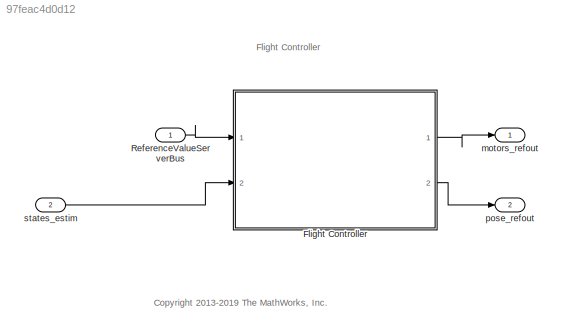
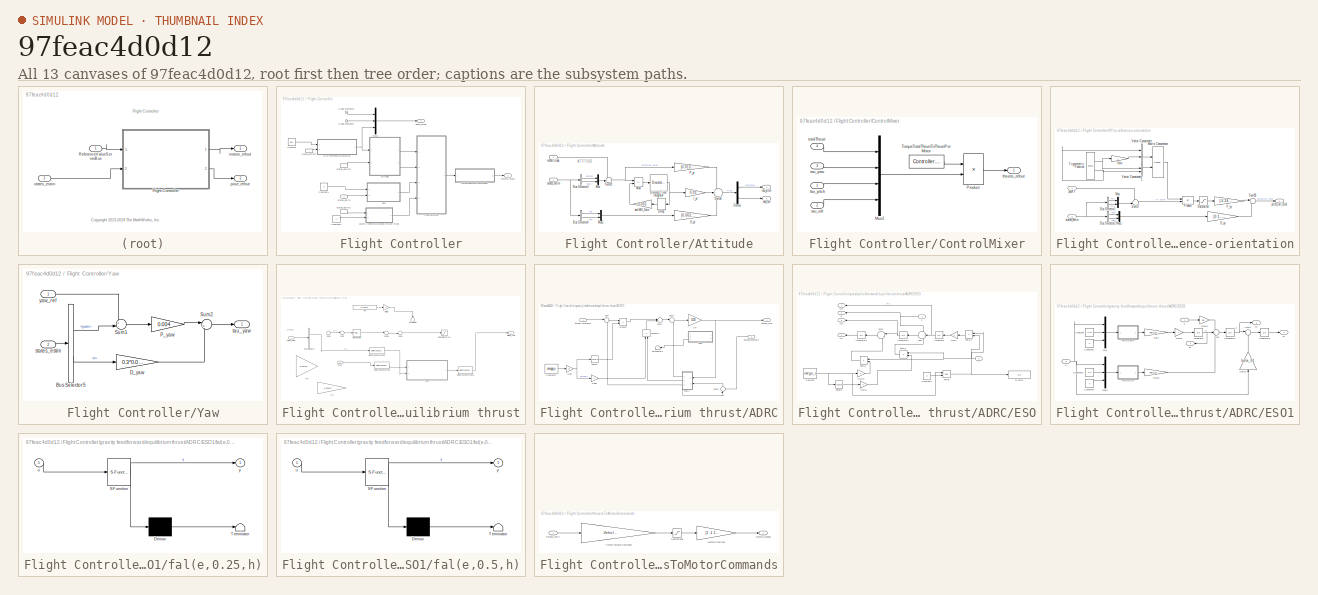
[diagram: thumbnail index - all 13 canvases of the model, root first then tree order]
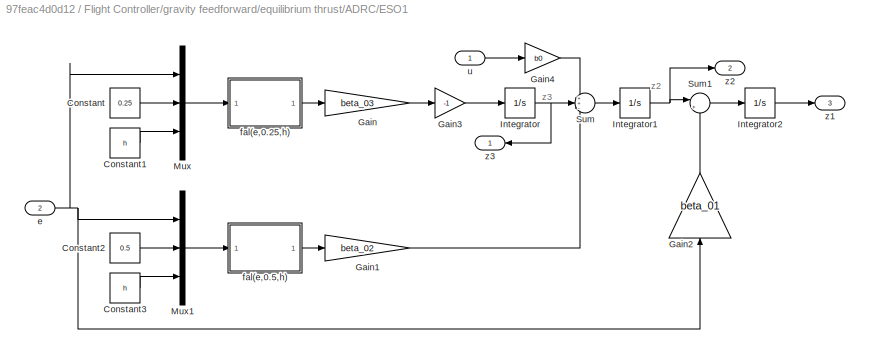
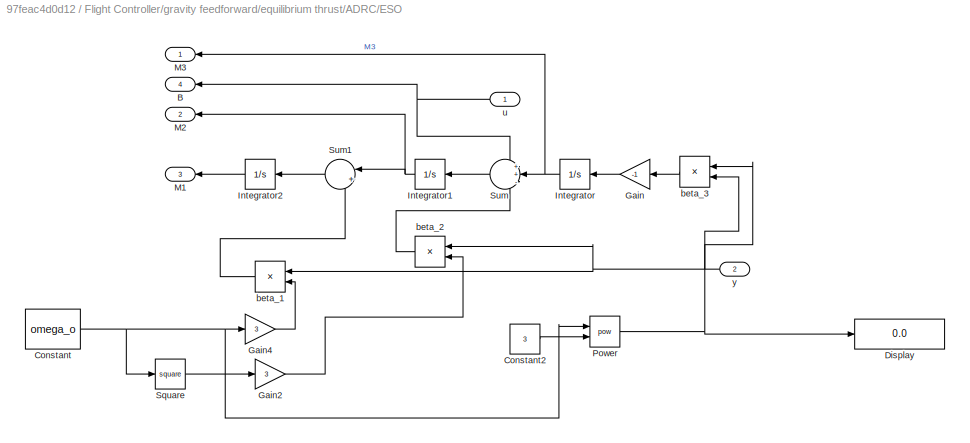
MODEL slx_97feac4d0d12
KIND model
CONFIG AbsTol = auto
CONFIG EnableMultiTasking = on
CONFIG FixedStep = Ts
CONFIG MaxStep = auto
CONFIG MinStep = auto
CONFIG RelTol = 1e-3
CONFIG SampleTimeConstraint = Unconstrained
CONFIG SolverName = FixedStepAuto
CONFIG StartTime = 0
CONFIG StopTime = TFinal
BLOCK [SubSystem] Flight Controller
  Ports = [2, 2]
  RequestExecContextInheritance = off
BLOCK [SubSystem] Flight Controller/Attitude
  Ports = [2, 2]
  RequestExecContextInheritance = off
BLOCK [Sum] Flight Controller/Attitude/Add
  IconShape = rectangular
  Inputs = +-
  Ports = [2, 1]
BLOCK [BusSelector] Flight Controller/Attitude/Bus Selector3
  OutputSignals = pitch,roll
  Ports = [1, 2]
BLOCK [BusSelector] Flight Controller/Attitude/Bus Selector4
  OutputSignals = q,p
  Ports = [1, 2]
BLOCK [Gain] Flight Controller/Attitude/D_pr
  Gain = [0.002;0.0028]
BLOCK [Delay] Flight Controller/Attitude/Delay
  DelayLength = 1
  InitialCondition = 0
  InputPortMap = u0
  Ports = [1, 1]
BLOCK [Demux] Flight Controller/Attitude/Demux
  Outputs = 2
  Ports = [1, 2]
BLOCK [DiscreteIntegrator] Flight Controller/Attitude/Discrete-Time Integrator
  ICPrevOutput = DiscIntNeverNeededParam
  ICPrevScaledInput = DiscIntNeverNeededParam
  InitialConditionSetting = Auto
  LimitOutput = on
  LowerSaturationLimit = -2
  Ports = [1, 1]
  SampleTime = -1
  UpperSaturationLimit = 2
BLOCK [Gain] Flight Controller/Attitude/I_pr
  Gain = 0.01
BLOCK [Mux] Flight Controller/Attitude/Mux
  DisplayOption = bar
  Inputs = 2
  Ports = [2, 1]
BLOCK [Mux] Flight Controller/Attitude/Mux1
  DisplayOption = bar
  Inputs = 2
  Ports = [2, 1]
BLOCK [Gain] Flight Controller/Attitude/P_pr
  Gain = [0.013;0.01]
BLOCK [Sum] Flight Controller/Attitude/Sum16
  AccumDataTypeStr = single
  Inputs = ++-
  OutDataTypeStr = single
  Ports = [3, 1]
  SaturateOnIntegerOverflow = on
BLOCK [Sum] Flight Controller/Attitude/Sum19
  Inputs = +-|
  Ports = [2, 1]
BLOCK [Gain] Flight Controller/Attitude/antiWU_Gain
  Gain = 0.001
BLOCK [Inport] Flight Controller/Attitude/refAttitude
BLOCK [Inport] Flight Controller/Attitude/states_estim
  Port = 2
BLOCK [Outport] Flight Controller/Attitude/tau_pitch
  VectorParamsAs1DForOutWhenUnconnected = off
BLOCK [Outport] Flight Controller/Attitude/tau_roll
  Port = 2
  VectorParamsAs1DForOutWhenUnconnected = off
BLOCK [Constant] Flight Controller/Constant
  OutDataTypeStr = single
  SampleTime = -1
  Value = [0 0]
BLOCK [Constant] Flight Controller/Constant1
  OutDataTypeStr = single
  SampleTime = -1
  Value = 0
BLOCK [Constant] Flight Controller/Constant2
  OutDataTypeStr = single
  SampleTime = -1
  Value = -1
BLOCK [SubSystem] Flight Controller/ControlMixer
  Ports = [4, 1]
  RequestExecContextInheritance = off
BLOCK [Mux] Flight Controller/ControlMixer/Mux2
  DisplayOption = bar
  Ports = [4, 1]
BLOCK [Product] Flight Controller/ControlMixer/Product
  Multiplication = Matrix(*)
  Ports = [2, 1]
  RndMeth = Zero
BLOCK [Constant] Flight Controller/ControlMixer/TorqueTotalThrustToThrustPerMotor
  NameLocation = top
  OutDataTypeStr = single
  Value = Controller.Q2Ts
BLOCK [Inport] Flight Controller/ControlMixer/tau_pitch
BLOCK [Inport] Flight Controller/ControlMixer/tau_roll
  Port = 2
BLOCK [Inport] Flight Controller/ControlMixer/tau_yaw
  Port = 3
BLOCK [Outport] Flight Controller/ControlMixer/thrusts_refout
  VectorParamsAs1DForOutWhenUnconnected = off
BLOCK [Inport] Flight Controller/ControlMixer/totalThrust
  Port = 4
BLOCK [Inport] Flight Controller/In Bus Element4
BLOCK [Inport] Flight Controller/In Bus Element7
BLOCK [Mux] Flight Controller/Mux2
  DisplayOption = bar
  Inputs = 3
  Ports = [3, 1]
BLOCK [SubSystem] Flight Controller/XY-to-reference-orientation
  Ports = [2, 1]
  RequestExecContextInheritance = off
BLOCK [BusSelector] Flight Controller/XY-to-reference-orientation/Bus Selector1
  OutputSignals = X,Y
  Ports = [1, 2]
BLOCK [BusSelector] Flight Controller/XY-to-reference-orientation/Bus Selector2
  OutputSignals = dx,dy
  Ports = [1, 2]
BLOCK [Gain] Flight Controller/XY-to-reference-orientation/D_xy
  Gain = [0.1, -0.1]
  OutDataTypeStr = single
  ParamDataTypeStr = single
  SaturateOnIntegerOverflow = on
BLOCK [Gain] Flight Controller/XY-to-reference-orientation/Gain
  Gain = -1
BLOCK [Concatenate] Flight Controller/XY-to-reference-orientation/Matrix Concatenate
  ConcatenateDimension = 2
  Mode = Multidimensional array
  Ports = [2, 1]
BLOCK [Mux] Flight Controller/XY-to-reference-orientation/Mux
  DisplayOption = bar
  Inputs = 2
  Ports = [2, 1]
BLOCK [Mux] Flight Controller/XY-to-reference-orientation/Mux1
  DisplayOption = bar
  Inputs = 2
  Ports = [2, 1]
BLOCK [Gain] Flight Controller/XY-to-reference-orientation/P_xy
  Gain = [-0.24,0.24]
  OutDataTypeStr = single
  ParamDataTypeStr = single
  SaturateOnIntegerOverflow = on
BLOCK [Product] Flight Controller/XY-to-reference-orientation/Product
  Multiplication = Matrix(*)
  OutDataTypeStr = single
  Ports = [2, 1]
  RndMeth = Zero
BLOCK [Saturate] Flight Controller/XY-to-reference-orientation/Saturation
  LowerLimit = -3
  OutDataTypeStr = single
  UpperLimit = 3
BLOCK [Sum] Flight Controller/XY-to-reference-orientation/Sum17
  AccumDataTypeStr = single
  Inputs = +-|
  Ports = [2, 1]
BLOCK [Sum] Flight Controller/XY-to-reference-orientation/Sum18
  AccumDataTypeStr = single
  Inputs = |++
  OutDataTypeStr = single
  Ports = [2, 1]
  SaturateOnIntegerOverflow = on
BLOCK [Trigonometry] Flight Controller/XY-to-reference-orientation/Trigonometric Function
  Operator = sincos
  Ports = [1, 2]
BLOCK [Concatenate] Flight Controller/XY-to-reference-orientation/Vector Concatenate
  Ports = [2, 1]
BLOCK [Concatenate] Flight Controller/XY-to-reference-orientation/Vector Concatenate1
  Ports = [2, 1]
BLOCK [Outport] Flight Controller/XY-to-reference-orientation/pitch_roll_cmd
  VectorParamsAs1DForOutWhenUnconnected = off
BLOCK [Inport] Flight Controller/XY-to-reference-orientation/posXY
BLOCK [Inport] Flight Controller/XY-to-reference-orientation/states_estim
  Port = 2
BLOCK [SubSystem] Flight Controller/Yaw
  Ports = [2, 1]
  RequestExecContextInheritance = off
BLOCK [BusSelector] Flight Controller/Yaw/Bus Selector5
  OutputSignals = yaw,r
  Ports = [1, 2]
BLOCK [Gain] Flight Controller/Yaw/D_yaw
  Gain = 0.3*0.004
BLOCK [Gain] Flight Controller/Yaw/P_yaw
  Gain = 0.004
  OutDataTypeStr = single
  ParamDataTypeStr = single
BLOCK [Sum] Flight Controller/Yaw/Sum1
  AccumDataTypeStr = single
  Inputs = +-|
  OutDataTypeStr = single
  Ports = [2, 1]
  SaturateOnIntegerOverflow = on
BLOCK [Sum] Flight Controller/Yaw/Sum2
  Inputs = |+-
  Ports = [2, 1]
BLOCK [Inport] Flight Controller/Yaw/states_estim
  Port = 2
BLOCK [Outport] Flight Controller/Yaw/tau_yaw
  VectorParamsAs1DForOutWhenUnconnected = off
BLOCK [Inport] Flight Controller/Yaw/yaw_ref
BLOCK [SubSystem] Flight Controller/gravity feedforward//equilibrium thrust
  Ports = [2, 1]
  RequestExecContextInheritance = off
BLOCK [SubSystem] Flight Controller/gravity feedforward//equilibrium thrust/ADRC
  Ports = [2, 1]
  RequestExecContextInheritance = off
BLOCK [Gain] Flight Controller/gravity feedforward//equilibrium thrust/ADRC/1//B
  Gain = 1/30
BLOCK [Inport] Flight Controller/gravity feedforward//equilibrium thrust/ADRC/Altitude reference
BLOCK [Outport] Flight Controller/gravity feedforward//equilibrium thrust/ADRC/Altitude_cmd
BLOCK [Inport] Flight Controller/gravity feedforward//equilibrium thrust/ADRC/Altitude_estimate
  Port = 2
BLOCK [Constant] Flight Controller/gravity feedforward//equilibrium thrust/ADRC/Constant1
  SampleTime = -1
  Value = omega_o
BLOCK [SubSystem] Flight Controller/gravity feedforward//equilibrium thrust/ADRC/ESO
  Commented = on
  Description = ESO
  Ports = [2, 4]
  RequestExecContextInheritance = off
BLOCK [Outport] Flight Controller/gravity feedforward//equilibrium thrust/ADRC/ESO/B
  Port = 4
BLOCK [Constant] Flight Controller/gravity feedforward//equilibrium thrust/ADRC/ESO/Constant
  SampleTime = -1
  Value = omega_o
BLOCK [Constant] Flight Controller/gravity feedforward//equilibrium thrust/ADRC/ESO/Constant2
  SampleTime = -1
  Value = 3
BLOCK [Display] Flight Controller/gravity feedforward//equilibrium thrust/ADRC/ESO/Display
  Decimation = 1
  Ports = [1]
BLOCK [Gain] Flight Controller/gravity feedforward//equilibrium thrust/ADRC/ESO/Gain
  Gain = -1
BLOCK [Gain] Flight Controller/gravity feedforward//equilibrium thrust/ADRC/ESO/Gain2
  Gain = 3
BLOCK [Gain] Flight Controller/gravity feedforward//equilibrium thrust/ADRC/ESO/Gain4
  Gain = 3
BLOCK [Integrator] Flight Controller/gravity feedforward//equilibrium thrust/ADRC/ESO/Integrator
  Ports = [1, 1]
BLOCK [Integrator] Flight Controller/gravity feedforward//equilibrium thrust/ADRC/ESO/Integrator1
  Ports = [1, 1]
BLOCK [Integrator] Flight Controller/gravity feedforward//equilibrium thrust/ADRC/ESO/Integrator2
  Ports = [1, 1]
BLOCK [Outport] Flight Controller/gravity feedforward//equilibrium thrust/ADRC/ESO/M1
  Port = 3
BLOCK [Outport] Flight Controller/gravity feedforward//equilibrium thrust/ADRC/ESO/M2
  Port = 2
BLOCK [Outport] Flight Controller/gravity feedforward//equilibrium thrust/ADRC/ESO/M3
BLOCK [Math] Flight Controller/gravity feedforward//equilibrium thrust/ADRC/ESO/Power
  Operator = pow
  Ports = [2, 1]
BLOCK [Math] Flight Controller/gravity feedforward//equilibrium thrust/ADRC/ESO/Square
  Operator = square
  Ports = [1, 1]
BLOCK [Sum] Flight Controller/gravity feedforward//equilibrium thrust/ADRC/ESO/Sum
  Inputs = ++-
  Ports = [3, 1]
BLOCK [Sum] Flight Controller/gravity feedforward//equilibrium thrust/ADRC/ESO/Sum1
  Inputs = |+-
  Ports = [2, 1]
BLOCK [Product] Flight Controller/gravity feedforward//equilibrium thrust/ADRC/ESO/beta_1
  Ports = [2, 1]
BLOCK [Product] Flight Controller/gravity feedforward//equilibrium thrust/ADRC/ESO/beta_2
  Ports = [2, 1]
BLOCK [Product] Flight Controller/gravity feedforward//equilibrium thrust/ADRC/ESO/beta_3
  Ports = [2, 1]
BLOCK [Inport] Flight Controller/gravity feedforward//equilibrium thrust/ADRC/ESO/u
BLOCK [Inport] Flight Controller/gravity feedforward//equilibrium thrust/ADRC/ESO/y
  Port = 2
BLOCK [SubSystem] Flight Controller/gravity feedforward//equilibrium thrust/ADRC/ESO1
  Ports = [2, 3]
  RequestExecContextInheritance = off
BLOCK [Constant] Flight Controller/gravity feedforward//equilibrium thrust/ADRC/ESO1/Constant
  Value = 0.25
BLOCK [Constant] Flight Controller/gravity feedforward//equilibrium thrust/ADRC/ESO1/Constant1
  Value = h
BLOCK [Constant] Flight Controller/gravity feedforward//equilibrium thrust/ADRC/ESO1/Constant2
  Value = 0.5
BLOCK [Constant] Flight Controller/gravity feedforward//equilibrium thrust/ADRC/ESO1/Constant3
  Value = h
BLOCK [Gain] Flight Controller/gravity feedforward//equilibrium thrust/ADRC/ESO1/Gain
  Gain = beta_03
BLOCK [Gain] Flight Controller/gravity feedforward//equilibrium thrust/ADRC/ESO1/Gain1
  Gain = beta_02
BLOCK [Gain] Flight Controller/gravity feedforward//equilibrium thrust/ADRC/ESO1/Gain2
  Gain = beta_01
  NameLocation = right
BLOCK [Gain] Flight Controller/gravity feedforward//equilibrium thrust/ADRC/ESO1/Gain3
  Gain = -1
BLOCK [Gain] Flight Controller/gravity feedforward//equilibrium thrust/ADRC/ESO1/Gain4
  Gain = b0
BLOCK [Integrator] Flight Controller/gravity feedforward//equilibrium thrust/ADRC/ESO1/Integrator
  Ports = [1, 1]
BLOCK [Integrator] Flight Controller/gravity feedforward//equilibrium thrust/ADRC/ESO1/Integrator1
  Ports = [1, 1]
BLOCK [Integrator] Flight Controller/gravity feedforward//equilibrium thrust/ADRC/ESO1/Integrator2
  Ports = [1, 1]
BLOCK [Mux] Flight Controller/gravity feedforward//equilibrium thrust/ADRC/ESO1/Mux
  DisplayOption = bar
  Inputs = [1 1 1]
  Ports = [3, 1]
BLOCK [Mux] Flight Controller/gravity feedforward//equilibrium thrust/ADRC/ESO1/Mux1
  DisplayOption = bar
  Inputs = [1 1 1]
  Ports = [3, 1]
BLOCK [Sum] Flight Controller/gravity feedforward//equilibrium thrust/ADRC/ESO1/Sum
  Inputs = ++-
  Ports = [3, 1]
BLOCK [Sum] Flight Controller/gravity feedforward//equilibrium thrust/ADRC/ESO1/Sum1
  Inputs = |+-
  Ports = [2, 1]
BLOCK [Inport] Flight Controller/gravity feedforward//equilibrium thrust/ADRC/ESO1/e
  Port = 2
BLOCK [SubSystem] Flight Controller/gravity feedforward//equilibrium thrust/ADRC/ESO1/fal(e,0.25,h)
  ErrorFcn = Stateflow.Translate.translate
  PermitHierarchicalResolution = ExplicitOnly
  Ports = [1, 1]
  RequestExecContextInheritance = off
  SFBlockType = MATLAB Function
  TreatAsAtomicUnit = on
BLOCK [Demux] Flight Controller/gravity feedforward//equilibrium thrust/ADRC/ESO1/fal(e,0.25,h)/ Demux 
  Outputs = 1
  Ports = [1, 1]
BLOCK [S-Function] Flight Controller/gravity feedforward//equilibrium thrust/ADRC/ESO1/fal(e,0.25,h)/ SFunction 
  EnableBusSupport = on
  FunctionName = sf_sfun
  PortCounts = [1 2]
  Ports = [1, 2]
  SFcnIsStateOwnerBlock = off
  SFunctionDeploymentMode = off
  Tag = Stateflow S-Function 3
BLOCK [Terminator] Flight Controller/gravity feedforward//equilibrium thrust/ADRC/ESO1/fal(e,0.25,h)/ Terminator 
BLOCK [Inport] Flight Controller/gravity feedforward//equilibrium thrust/ADRC/ESO1/fal(e,0.25,h)/u
BLOCK [Outport] Flight Controller/gravity feedforward//equilibrium thrust/ADRC/ESO1/fal(e,0.25,h)/y
BLOCK [SubSystem] Flight Controller/gravity feedforward//equilibrium thrust/ADRC/ESO1/fal(e,0.5,h)
  ErrorFcn = Stateflow.Translate.translate
  PermitHierarchicalResolution = ExplicitOnly
  Ports = [1, 1]
  RequestExecContextInheritance = off
  SFBlockType = MATLAB Function
  TreatAsAtomicUnit = on
BLOCK [Demux] Flight Controller/gravity feedforward//equilibrium thrust/ADRC/ESO1/fal(e,0.5,h)/ Demux 
  Outputs = 1
  Ports = [1, 1]
BLOCK [S-Function] Flight Controller/gravity feedforward//equilibrium thrust/ADRC/ESO1/fal(e,0.5,h)/ SFunction 
  EnableBusSupport = on
  FunctionName = sf_sfun
  PortCounts = [1 2]
  Ports = [1, 2]
  SFcnIsStateOwnerBlock = off
  SFunctionDeploymentMode = off
  Tag = Stateflow S-Function 4
BLOCK [Terminator] Flight Controller/gravity feedforward//equilibrium thrust/ADRC/ESO1/fal(e,0.5,h)/ Terminator 
BLOCK [Inport] Flight Controller/gravity feedforward//equilibrium thrust/ADRC/ESO1/fal(e,0.5,h)/u
BLOCK [Outport] Flight Controller/gravity feedforward//equilibrium thrust/ADRC/ESO1/fal(e,0.5,h)/y
BLOCK [Inport] Flight Controller/gravity feedforward//equilibrium thrust/ADRC/ESO1/u
BLOCK [Outport] Flight Controller/gravity feedforward//equilibrium thrust/ADRC/ESO1/z1
  Port = 3
BLOCK [Outport] Flight Controller/gravity feedforward//equilibrium thrust/ADRC/ESO1/z2
  Port = 2
BLOCK [Outport] Flight Controller/gravity feedforward//equilibrium thrust/ADRC/ESO1/z3
BLOCK [Gain] Flight Controller/gravity feedforward//equilibrium thrust/ADRC/Gain
  Gain = 1/4
BLOCK [Gain] Flight Controller/gravity feedforward//equilibrium thrust/ADRC/Gain1
  Gain = 2
BLOCK [Product] Flight Controller/gravity feedforward//equilibrium thrust/ADRC/Product
  Ports = [2, 1]
BLOCK [Product] Flight Controller/gravity feedforward//equilibrium thrust/ADRC/Product1
  NameLocation = right
  Ports = [2, 1]
BLOCK [Math] Flight Controller/gravity feedforward//equilibrium thrust/ADRC/Square
  Operator = square
  Ports = [1, 1]
BLOCK [Sum] Flight Controller/gravity feedforward//equilibrium thrust/ADRC/Sum
  Inputs = |+-
  Ports = [2, 1]
BLOCK [Sum] Flight Controller/gravity feedforward//equilibrium thrust/ADRC/Sum1
  Inputs = |+-
  Ports = [2, 1]
BLOCK [Sum] Flight Controller/gravity feedforward//equilibrium thrust/ADRC/Sum2
  Inputs = |+-
  Ports = [2, 1]
BLOCK [Sum] Flight Controller/gravity feedforward//equilibrium thrust/ADRC/Sum5
  Inputs = |+-
  NameLocation = right
  Ports = [2, 1]
BLOCK [Terminator] Flight Controller/gravity feedforward//equilibrium thrust/ADRC/Terminator2
  NameLocation = top
BLOCK [BusSelector] Flight Controller/gravity feedforward//equilibrium thrust/Bus Selector6
  OutputSignals = Z,dz
  Ports = [1, 2]
BLOCK [Gain] Flight Controller/gravity feedforward//equilibrium thrust/D_z
  Commented = on
  Gain = 0.307766053734978
  OutDataTypeStr = single
  ParamDataTypeStr = single
  SaturateOnIntegerOverflow = on
BLOCK [DataTypeConversion] Flight Controller/gravity feedforward//equilibrium thrust/Data Type Conversion
  OutDataTypeStr = double
  RndMeth = Floor
  SaturateOnIntegerOverflow = off
BLOCK [DataTypeConversion] Flight Controller/gravity feedforward//equilibrium thrust/Data Type Conversion1
  OutDataTypeStr = double
  RndMeth = Floor
  SaturateOnIntegerOverflow = off
BLOCK [DataTypeConversion] Flight Controller/gravity feedforward//equilibrium thrust/Data Type Conversion2
  OutDataTypeStr = single
  RndMeth = Floor
  SaturateOnIntegerOverflow = off
BLOCK [Gain] Flight Controller/gravity feedforward//equilibrium thrust/Multiply
  Commented = on
BLOCK [Reference] Flight Controller/gravity feedforward//equilibrium thrust/PID Controller  REF=slpidlib/PID Controller
  Commented = on
  Ports = [1, 1]
  SourceBlock = slpidlib/PID Controller
  SourceProductBaseCode = SL
  SourceType = PID 1dof
BLOCK [Gain] Flight Controller/gravity feedforward//equilibrium thrust/P_z
  Commented = on
  Gain = 0.322471864619734
  OutDataTypeStr = single
  ParamDataTypeStr = single
  SaturateOnIntegerOverflow = on
BLOCK [Inport] Flight Controller/gravity feedforward//equilibrium thrust/PosZ
  Port = 2
BLOCK [Saturate] Flight Controller/gravity feedforward//equilibrium thrust/SaturationThrust
  Commented = on
  LowerLimit = -4*Controller.totalThrustMaxRelative*Controller.motorsThrustPerMotorMax
  OutDataTypeStr = single
  UpperLimit = 4*Controller.totalThrustMaxRelative*Controller.motorsThrustPerMotorMax
BLOCK [Sum] Flight Controller/gravity feedforward//equilibrium thrust/Sum1
  AccumDataTypeStr = single
  Commented = on
  Inputs = |++
  OutDataTypeStr = single
  Ports = [2, 1]
  SaturateOnIntegerOverflow = on
BLOCK [Sum] Flight Controller/gravity feedforward//equilibrium thrust/Sum15
  AccumDataTypeStr = single
  Commented = on
  Inputs = |+-
  OutDataTypeStr = single
  Ports = [2, 1]
  SaturateOnIntegerOverflow = on
BLOCK [Sum] Flight Controller/gravity feedforward//equilibrium thrust/Sum3
  AccumDataTypeStr = single
  Commented = on
  Inputs = +-|
  OutDataTypeStr = single
  Ports = [2, 1]
  SaturateOnIntegerOverflow = on
BLOCK [Sum] Flight Controller/gravity feedforward//equilibrium thrust/Sum4
  AccumDataTypeStr = single
  Commented = on
  Inputs = ++|
  OutDataTypeStr = single
  Ports = [2, 1]
  SaturateOnIntegerOverflow = on
BLOCK [Terminator] Flight Controller/gravity feedforward//equilibrium thrust/Terminator
  Commented = on
  NameLocation = left
BLOCK [Outport] Flight Controller/gravity feedforward//equilibrium thrust/altitude_cmd
  VectorParamsAs1DForOutWhenUnconnected = off
BLOCK [Inport] Flight Controller/gravity feedforward//equilibrium thrust/states_estim
BLOCK [Constant] Flight Controller/gravity feedforward//equilibrium thrust/w0
  Commented = on
  OutDataTypeStr = single
  SampleTime = Ts
  Value = -g*Vehicle.Airframe.mass
BLOCK [Outport] Flight Controller/motors_refout
  VectorParamsAs1DForOutWhenUnconnected = off
BLOCK [Outport] Flight Controller/pose_refout
  Port = 2
  VectorParamsAs1DForOutWhenUnconnected = off
BLOCK [Inport] Flight Controller/states_estim
  Port = 2
BLOCK [InportShadow] Flight Controller/states_estim1
  Port = 2
BLOCK [InportShadow] Flight Controller/states_estim2
  Port = 2
BLOCK [InportShadow] Flight Controller/states_estim3
  Port = 2
BLOCK [SubSystem] Flight Controller/thrustsToMotorCommands
  Ports = [1, 1]
  RequestExecContextInheritance = off
BLOCK [Gain] Flight Controller/thrustsToMotorCommands/MotorDirections
  Gain = [1 -1 1 -1]
BLOCK [Saturate] Flight Controller/thrustsToMotorCommands/Saturation5
  LowerLimit = Vehicle.Motor.minLimit
  UpperLimit = Vehicle.Motor.maxLimit
BLOCK [Gain] Flight Controller/thrustsToMotorCommands/ThrustToMotorCommand
  Gain = -Vehicle.Motor.thrustToMotorCommand
BLOCK [Outport] Flight Controller/thrustsToMotorCommands/motors_cmdout
  VectorParamsAs1DForOutWhenUnconnected = off
BLOCK [Inport] Flight Controller/thrustsToMotorCommands/thrusts_refin
BLOCK [Inport] ReferenceValueServerBus
  BusOutputAsStruct = on
  OutDataTypeStr = Bus: CommandBus
BLOCK [Outport] motors_refout
  VectorParamsAs1DForOutWhenUnconnected = off
BLOCK [Outport] pose_refout
  Port = 2
  VectorParamsAs1DForOutWhenUnconnected = off
BLOCK [Inport] states_estim
  BusOutputAsStruct = on
  OutDataTypeStr = Bus: statesEstim_t
  Port = 2
ANNOTATION (root): <copyright redacted>
ANNOTATION (root): Flight Controller
ANNOTATION Flight Controller/Attitude: ATTITUDE
ANNOTATION Flight Controller/gravity feedforward//equilibrium thrust: ALTITUDE
ANNOTATION Flight Controller/gravity feedforward//equilibrium thrust/ADRC/ESO1: z2
ANNOTATION Flight Controller/gravity feedforward//equilibrium thrust/ADRC/ESO1: z3
LINE Flight Controller/Attitude/Add:1 -> Flight Controller/Attitude/Discrete-Time Integrator:1
LINE Flight Controller/Attitude/Bus Selector3:1 -> Flight Controller/Attitude/Mux:1
LINE Flight Controller/Attitude/Bus Selector3:2 -> Flight Controller/Attitude/Mux:2
LINE Flight Controller/Attitude/Bus Selector4:1 -> Flight Controller/Attitude/Mux1:1
LINE Flight Controller/Attitude/Bus Selector4:2 -> Flight Controller/Attitude/Mux1:2
LINE Flight Controller/Attitude/D_pr:1 -> Flight Controller/Attitude/Sum16:3
LINE Flight Controller/Attitude/Delay:1 -> Flight Controller/Attitude/antiWU_Gain:1
LINE Flight Controller/Attitude/Demux:1 -> Flight Controller/Attitude/tau_pitch:1
LINE Flight Controller/Attitude/Demux:2 -> Flight Controller/Attitude/tau_roll:1
NET Flight Controller/Attitude/Discrete-Time Integrator:1 -> Flight Controller/Attitude/Delay:1, Flight Controller/Attitude/I_pr:1
LINE Flight Controller/Attitude/I_pr:1 -> Flight Controller/Attitude/Sum16:2
LINE Flight Controller/Attitude/Mux1:1 -> Flight Controller/Attitude/D_pr:1
LINE Flight Controller/Attitude/Mux:1 -> Flight Controller/Attitude/Sum19:2
LINE Flight Controller/Attitude/P_pr:1 -> Flight Controller/Attitude/Sum16:1
LINE Flight Controller/Attitude/Sum16:1 -> Flight Controller/Attitude/Demux:1
NET Flight Controller/Attitude/Sum19:1 -> Flight Controller/Attitude/Add:1, Flight Controller/Attitude/P_pr:1
LINE Flight Controller/Attitude/antiWU_Gain:1 -> Flight Controller/Attitude/Add:2
LINE Flight Controller/Attitude/refAttitude:1 -> Flight Controller/Attitude/Sum19:1
NET Flight Controller/Attitude/states_estim:1 -> Flight Controller/Attitude/Bus Selector3:1, Flight Controller/Attitude/Bus Selector4:1
LINE Flight Controller/Attitude:1 -> Flight Controller/ControlMixer:1
LINE Flight Controller/Attitude:2 -> Flight Controller/ControlMixer:2
LINE Flight Controller/Constant1:1 -> Flight Controller/Yaw:1
LINE Flight Controller/Constant2:1 -> Flight Controller/gravity feedforward//equilibrium thrust:2
LINE Flight Controller/Constant:1 -> Flight Controller/XY-to-reference-orientation:1
LINE Flight Controller/ControlMixer/Mux2:1 -> Flight Controller/ControlMixer/Product:2
LINE Flight Controller/ControlMixer/Product:1 -> Flight Controller/ControlMixer/thrusts_refout:1
LINE Flight Controller/ControlMixer/TorqueTotalThrustToThrustPerMotor:1 -> Flight Controller/ControlMixer/Product:1
LINE Flight Controller/ControlMixer/tau_pitch:1 -> Flight Controller/ControlMixer/Mux2:3
LINE Flight Controller/ControlMixer/tau_roll:1 -> Flight Controller/ControlMixer/Mux2:4
LINE Flight Controller/ControlMixer/tau_yaw:1 -> Flight Controller/ControlMixer/Mux2:2
LINE Flight Controller/ControlMixer/totalThrust:1 -> Flight Controller/ControlMixer/Mux2:1
LINE Flight Controller/ControlMixer:1 -> Flight Controller/thrustsToMotorCommands:1
LINE Flight Controller/In Bus Element4:1 -> Flight Controller/Mux2:1
LINE Flight Controller/In Bus Element7:1 -> Flight Controller/Mux2:2
LINE Flight Controller/Mux2:1 -> Flight Controller/pose_refout:1
LINE Flight Controller/XY-to-reference-orientation/Bus Selector1:1 -> Flight Controller/XY-to-reference-orientation/Mux:1
LINE Flight Controller/XY-to-reference-orientation/Bus Selector1:2 -> Flight Controller/XY-to-reference-orientation/Mux:2
LINE Flight Controller/XY-to-reference-orientation/Bus Selector2:1 -> Flight Controller/XY-to-reference-orientation/Mux1:1
LINE Flight Controller/XY-to-reference-orientation/Bus Selector2:2 -> Flight Controller/XY-to-reference-orientation/Mux1:2
LINE Flight Controller/XY-to-reference-orientation/D_xy:1 -> Flight Controller/XY-to-reference-orientation/Sum18:2
LINE Flight Controller/XY-to-reference-orientation/Gain:1 -> Flight Controller/XY-to-reference-orientation/Vector Concatenate:2
LINE Flight Controller/XY-to-reference-orientation/Matrix Concatenate:1 -> Flight Controller/XY-to-reference-orientation/Product:1
LINE Flight Controller/XY-to-reference-orientation/Mux1:1 -> Flight Controller/XY-to-reference-orientation/D_xy:1
LINE Flight Controller/XY-to-reference-orientation/Mux:1 -> Flight Controller/XY-to-reference-orientation/Sum17:2
LINE Flight Controller/XY-to-reference-orientation/P_xy:1 -> Flight Controller/XY-to-reference-orientation/Sum18:1
LINE Flight Controller/XY-to-reference-orientation/Product:1 -> Flight Controller/XY-to-reference-orientation/Saturation:1
LINE Flight Controller/XY-to-reference-orientation/Saturation:1 -> Flight Controller/XY-to-reference-orientation/P_xy:1
LINE Flight Controller/XY-to-reference-orientation/Sum17:1 -> Flight Controller/XY-to-reference-orientation/Product:2
LINE Flight Controller/XY-to-reference-orientation/Sum18:1 -> Flight Controller/XY-to-reference-orientation/pitch_roll_cmd:1
NET Flight Controller/XY-to-reference-orientation/Trigonometric Function:1 -> Flight Controller/XY-to-reference-orientation/Gain:1, Flight Controller/XY-to-reference-orientation/Vector Concatenate1:1
NET Flight Controller/XY-to-reference-orientation/Trigonometric Function:2 -> Flight Controller/XY-to-reference-orientation/Vector Concatenate1:2, Flight Controller/XY-to-reference-orientation/Vector Concatenate:1
LINE Flight Controller/XY-to-reference-orientation/Vector Concatenate1:1 -> Flight Controller/XY-to-reference-orientation/Matrix Concatenate:2
LINE Flight Controller/XY-to-reference-orientation/Vector Concatenate:1 -> Flight Controller/XY-to-reference-orientation/Matrix Concatenate:1
LINE Flight Controller/XY-to-reference-orientation/posXY:1 -> Flight Controller/XY-to-reference-orientation/Sum17:1
NET Flight Controller/XY-to-reference-orientation/states_estim:1 -> Flight Controller/XY-to-reference-orientation/Bus Selector1:1, Flight Controller/XY-to-reference-orientation/Bus Selector2:1
NET Flight Controller/XY-to-reference-orientation:1 -> Flight Controller/Attitude:1, Flight Controller/Mux2:3
LINE Flight Controller/Yaw/Bus Selector5:1 -> Flight Controller/Yaw/Sum1:2
LINE Flight Controller/Yaw/Bus Selector5:2 -> Flight Controller/Yaw/D_yaw:1
LINE Flight Controller/Yaw/D_yaw:1 -> Flight Controller/Yaw/Sum2:2
LINE Flight Controller/Yaw/P_yaw:1 -> Flight Controller/Yaw/Sum2:1
LINE Flight Controller/Yaw/Sum1:1 -> Flight Controller/Yaw/P_yaw:1
LINE Flight Controller/Yaw/Sum2:1 -> Flight Controller/Yaw/tau_yaw:1
LINE Flight Controller/Yaw/states_estim:1 -> Flight Controller/Yaw/Bus Selector5:1
LINE Flight Controller/Yaw/yaw_ref:1 -> Flight Controller/Yaw/Sum1:1
LINE Flight Controller/Yaw:1 -> Flight Controller/ControlMixer:3
NET Flight Controller/gravity feedforward//equilibrium thrust/ADRC/1//B:1 -> Flight Controller/gravity feedforward//equilibrium thrust/ADRC/Altitude_cmd:1, Flight Controller/gravity feedforward//equilibrium thrust/ADRC/ESO1:1
LINE Flight Controller/gravity feedforward//equilibrium thrust/ADRC/Altitude reference:1 -> Flight Controller/gravity feedforward//equilibrium thrust/ADRC/Sum:1
LINE Flight Controller/gravity feedforward//equilibrium thrust/ADRC/Altitude_estimate:1 -> Flight Controller/gravity feedforward//equilibrium thrust/ADRC/Sum5:2
LINE Flight Controller/gravity feedforward//equilibrium thrust/ADRC/Constant1:1 -> Flight Controller/gravity feedforward//equilibrium thrust/ADRC/Gain:1
LINE Flight Controller/gravity feedforward//equilibrium thrust/ADRC/ESO/Constant2:1 -> Flight Controller/gravity feedforward//equilibrium thrust/ADRC/ESO/Power:2
NET Flight Controller/gravity feedforward//equilibrium thrust/ADRC/ESO/Constant:1 -> Flight Controller/gravity feedforward//equilibrium thrust/ADRC/ESO/Gain4:1, Flight Controller/gravity feedforward//equilibrium thrust/ADRC/ESO/Power:1, Flight Controller/gravity feedforward//equilibrium thrust/ADRC/ESO/Square:1
LINE Flight Controller/gravity feedforward//equilibrium thrust/ADRC/ESO/Gain2:1 -> Flight Controller/gravity feedforward//equilibrium thrust/ADRC/ESO/beta_2:2
LINE Flight Controller/gravity feedforward//equilibrium thrust/ADRC/ESO/Gain4:1 -> Flight Controller/gravity feedforward//equilibrium thrust/ADRC/ESO/beta_1:2
LINE Flight Controller/gravity feedforward//equilibrium thrust/ADRC/ESO/Gain:1 -> Flight Controller/gravity feedforward//equilibrium thrust/ADRC/ESO/Integrator:1
NET Flight Controller/gravity feedforward//equilibrium thrust/ADRC/ESO/Integrator1:1 -> Flight Controller/gravity feedforward//equilibrium thrust/ADRC/ESO/M2:1, Flight Controller/gravity feedforward//equilibrium thrust/ADRC/ESO/Sum1:1
LINE Flight Controller/gravity feedforward//equilibrium thrust/ADRC/ESO/Integrator2:1 -> Flight Controller/gravity feedforward//equilibrium thrust/ADRC/ESO/M1:1
NET Flight Controller/gravity feedforward//equilibrium thrust/ADRC/ESO/Integrator:1 -> Flight Controller/gravity feedforward//equilibrium thrust/ADRC/ESO/M3:1, Flight Controller/gravity feedforward//equilibrium thrust/ADRC/ESO/Sum:2
NET Flight Controller/gravity feedforward//equilibrium thrust/ADRC/ESO/Power:1 -> Flight Controller/gravity feedforward//equilibrium thrust/ADRC/ESO/Display:1, Flight Controller/gravity feedforward//equilibrium thrust/ADRC/ESO/beta_3:1
LINE Flight Controller/gravity feedforward//equilibrium thrust/ADRC/ESO/Square:1 -> Flight Controller/gravity feedforward//equilibrium thrust/ADRC/ESO/Gain2:1
LINE Flight Controller/gravity feedforward//equilibrium thrust/ADRC/ESO/Sum1:1 -> Flight Controller/gravity feedforward//equilibrium thrust/ADRC/ESO/Integrator2:1
LINE Flight Controller/gravity feedforward//equilibrium thrust/ADRC/ESO/Sum:1 -> Flight Controller/gravity feedforward//equilibrium thrust/ADRC/ESO/Integrator1:1
LINE Flight Controller/gravity feedforward//equilibrium thrust/ADRC/ESO/beta_1:1 -> Flight Controller/gravity feedforward//equilibrium thrust/ADRC/ESO/Sum1:2
LINE Flight Controller/gravity feedforward//equilibrium thrust/ADRC/ESO/beta_2:1 -> Flight Controller/gravity feedforward//equilibrium thrust/ADRC/ESO/Sum:3
LINE Flight Controller/gravity feedforward//equilibrium thrust/ADRC/ESO/beta_3:1 -> Flight Controller/gravity feedforward//equilibrium thrust/ADRC/ESO/Gain:1
NET Flight Controller/gravity feedforward//equilibrium thrust/ADRC/ESO/u:1 -> Flight Controller/gravity feedforward//equilibrium thrust/ADRC/ESO/B:1, Flight Controller/gravity feedforward//equilibrium thrust/ADRC/ESO/Sum:1
NET Flight Controller/gravity feedforward//equilibrium thrust/ADRC/ESO/y:1 -> Flight Controller/gravity feedforward//equilibrium thrust/ADRC/ESO/beta_1:1, Flight Controller/gravity feedforward//equilibrium thrust/ADRC/ESO/beta_2:1, Flight Controller/gravity feedforward//equilibrium thrust/ADRC/ESO/beta_3:2
LINE Flight Controller/gravity feedforward//equilibrium thrust/ADRC/ESO1/Constant1:1 -> Flight Controller/gravity feedforward//equilibrium thrust/ADRC/ESO1/Mux:3
LINE Flight Controller/gravity feedforward//equilibrium thrust/ADRC/ESO1/Constant2:1 -> Flight Controller/gravity feedforward//equilibrium thrust/ADRC/ESO1/Mux1:2
LINE Flight Controller/gravity feedforward//equilibrium thrust/ADRC/ESO1/Constant3:1 -> Flight Controller/gravity feedforward//equilibrium thrust/ADRC/ESO1/Mux1:3
LINE Flight Controller/gravity feedforward//equilibrium thrust/ADRC/ESO1/Constant:1 -> Flight Controller/gravity feedforward//equilibrium thrust/ADRC/ESO1/Mux:2
LINE Flight Controller/gravity feedforward//equilibrium thrust/ADRC/ESO1/Gain1:1 -> Flight Controller/gravity feedforward//equilibrium thrust/ADRC/ESO1/Sum:3
LINE Flight Controller/gravity feedforward//equilibrium thrust/ADRC/ESO1/Gain2:1 -> Flight Controller/gravity feedforward//equilibrium thrust/ADRC/ESO1/Sum1:2
LINE Flight Controller/gravity feedforward//equilibrium thrust/ADRC/ESO1/Gain3:1 -> Flight Controller/gravity feedforward//equilibrium thrust/ADRC/ESO1/Integrator:1
LINE Flight Controller/gravity feedforward//equilibrium thrust/ADRC/ESO1/Gain4:1 -> Flight Controller/gravity feedforward//equilibrium thrust/ADRC/ESO1/Sum:1
LINE Flight Controller/gravity feedforward//equilibrium thrust/ADRC/ESO1/Gain:1 -> Flight Controller/gravity feedforward//equilibrium thrust/ADRC/ESO1/Gain3:1
NET Flight Controller/gravity feedforward//equilibrium thrust/ADRC/ESO1/Integrator1:1 -> Flight Controller/gravity feedforward//equilibrium thrust/ADRC/ESO1/Sum1:1, Flight Controller/gravity feedforward//equilibrium thrust/ADRC/ESO1/z2:1
LINE Flight Controller/gravity feedforward//equilibrium thrust/ADRC/ESO1/Integrator2:1 -> Flight Controller/gravity feedforward//equilibrium thrust/ADRC/ESO1/z1:1
NET Flight Controller/gravity feedforward//equilibrium thrust/ADRC/ESO1/Integrator:1 -> Flight Controller/gravity feedforward//equilibrium thrust/ADRC/ESO1/Sum:2, Flight Controller/gravity feedforward//equilibrium thrust/ADRC/ESO1/z3:1
LINE Flight Controller/gravity feedforward//equilibrium thrust/ADRC/ESO1/Mux1:1 -> Flight Controller/gravity feedforward//equilibrium thrust/ADRC/ESO1/fal(e,0.5,h):1
LINE Flight Controller/gravity feedforward//equilibrium thrust/ADRC/ESO1/Mux:1 -> Flight Controller/gravity feedforward//equilibrium thrust/ADRC/ESO1/fal(e,0.25,h):1
LINE Flight Controller/gravity feedforward//equilibrium thrust/ADRC/ESO1/Sum1:1 -> Flight Controller/gravity feedforward//equilibrium thrust/ADRC/ESO1/Integrator2:1
LINE Flight Controller/gravity feedforward//equilibrium thrust/ADRC/ESO1/Sum:1 -> Flight Controller/gravity feedforward//equilibrium thrust/ADRC/ESO1/Integrator1:1
NET Flight Controller/gravity feedforward//equilibrium thrust/ADRC/ESO1/e:1 -> Flight Controller/gravity feedforward//equilibrium thrust/ADRC/ESO1/Gain2:1, Flight Controller/gravity feedforward//equilibrium thrust/ADRC/ESO1/Mux1:1, Flight Controller/gravity feedforward//equilibrium thrust/ADRC/ESO1/Mux:1
LINE Flight Controller/gravity feedforward//equilibrium thrust/ADRC/ESO1/fal(e,0.25,h):1 -> Flight Controller/gravity feedforward//equilibrium thrust/ADRC/ESO1/Gain:1
LINE Flight Controller/gravity feedforward//equilibrium thrust/ADRC/ESO1/fal(e,0.5,h):1 -> Flight Controller/gravity feedforward//equilibrium thrust/ADRC/ESO1/Gain1:1
LINE Flight Controller/gravity feedforward//equilibrium thrust/ADRC/ESO1/u:1 -> Flight Controller/gravity feedforward//equilibrium thrust/ADRC/ESO1/Gain4:1
LINE Flight Controller/gravity feedforward//equilibrium thrust/ADRC/ESO1:1 -> Flight Controller/gravity feedforward//equilibrium thrust/ADRC/Sum2:2
LINE Flight Controller/gravity feedforward//equilibrium thrust/ADRC/ESO1:2 -> Flight Controller/gravity feedforward//equilibrium thrust/ADRC/Product1:2
NET Flight Controller/gravity feedforward//equilibrium thrust/ADRC/ESO1:3 -> Flight Controller/gravity feedforward//equilibrium thrust/ADRC/Sum5:1, Flight Controller/gravity feedforward//equilibrium thrust/ADRC/Sum:2
LINE Flight Controller/gravity feedforward//equilibrium thrust/ADRC/ESO:4 -> Flight Controller/gravity feedforward//equilibrium thrust/ADRC/Terminator2:1
LINE Flight Controller/gravity feedforward//equilibrium thrust/ADRC/Gain1:1 -> Flight Controller/gravity feedforward//equilibrium thrust/ADRC/Product1:1
NET Flight Controller/gravity feedforward//equilibrium thrust/ADRC/Gain:1 -> Flight Controller/gravity feedforward//equilibrium thrust/ADRC/Gain1:1, Flight Controller/gravity feedforward//equilibrium thrust/ADRC/Square:1
LINE Flight Controller/gravity feedforward//equilibrium thrust/ADRC/Product1:1 -> Flight Controller/gravity feedforward//equilibrium thrust/ADRC/Sum1:2
LINE Flight Controller/gravity feedforward//equilibrium thrust/ADRC/Product:1 -> Flight Controller/gravity feedforward//equilibrium thrust/ADRC/Sum1:1
LINE Flight Controller/gravity feedforward//equilibrium thrust/ADRC/Square:1 -> Flight Controller/gravity feedforward//equilibrium thrust/ADRC/Product:2
LINE Flight Controller/gravity feedforward//equilibrium thrust/ADRC/Sum1:1 -> Flight Controller/gravity feedforward//equilibrium thrust/ADRC/Sum2:1
LINE Flight Controller/gravity feedforward//equilibrium thrust/ADRC/Sum2:1 -> Flight Controller/gravity feedforward//equilibrium thrust/ADRC/1//B:1
LINE Flight Controller/gravity feedforward//equilibrium thrust/ADRC/Sum5:1 -> Flight Controller/gravity feedforward//equilibrium thrust/ADRC/ESO1:2
LINE Flight Controller/gravity feedforward//equilibrium thrust/ADRC/Sum:1 -> Flight Controller/gravity feedforward//equilibrium thrust/ADRC/Product:1
LINE Flight Controller/gravity feedforward//equilibrium thrust/ADRC:1 -> Flight Controller/gravity feedforward//equilibrium thrust/Data Type Conversion2:1
LINE Flight Controller/gravity feedforward//equilibrium thrust/Bus Selector6:1 -> Flight Controller/gravity feedforward//equilibrium thrust/Data Type Conversion1:1
LINE Flight Controller/gravity feedforward//equilibrium thrust/Data Type Conversion1:1 -> Flight Controller/gravity feedforward//equilibrium thrust/ADRC:2
LINE Flight Controller/gravity feedforward//equilibrium thrust/Data Type Conversion2:1 -> Flight Controller/gravity feedforward//equilibrium thrust/altitude_cmd:1
LINE Flight Controller/gravity feedforward//equilibrium thrust/Data Type Conversion:1 -> Flight Controller/gravity feedforward//equilibrium thrust/ADRC:1
LINE Flight Controller/gravity feedforward//equilibrium thrust/Multiply:1 -> Flight Controller/gravity feedforward//equilibrium thrust/Terminator:1
LINE Flight Controller/gravity feedforward//equilibrium thrust/PID Controller:1 -> Flight Controller/gravity feedforward//equilibrium thrust/Sum15:1
LINE Flight Controller/gravity feedforward//equilibrium thrust/PosZ:1 -> Flight Controller/gravity feedforward//equilibrium thrust/Data Type Conversion:1
LINE Flight Controller/gravity feedforward//equilibrium thrust/Sum15:1 -> Flight Controller/gravity feedforward//equilibrium thrust/Sum4:2
LINE Flight Controller/gravity feedforward//equilibrium thrust/Sum1:1 -> Flight Controller/gravity feedforward//equilibrium thrust/PID Controller:1
LINE Flight Controller/gravity feedforward//equilibrium thrust/Sum3:1 -> Flight Controller/gravity feedforward//equilibrium thrust/Sum1:1
LINE Flight Controller/gravity feedforward//equilibrium thrust/Sum4:1 -> Flight Controller/gravity feedforward//equilibrium thrust/SaturationThrust:1
LINE Flight Controller/gravity feedforward//equilibrium thrust/states_estim:1 -> Flight Controller/gravity feedforward//equilibrium thrust/Bus Selector6:1
LINE Flight Controller/gravity feedforward//equilibrium thrust/w0:1 -> Flight Controller/gravity feedforward//equilibrium thrust/Multiply:1
LINE Flight Controller/gravity feedforward//equilibrium thrust:1 -> Flight Controller/ControlMixer:4
LINE Flight Controller/states_estim1:1 -> Flight Controller/gravity feedforward//equilibrium thrust:1
LINE Flight Controller/states_estim2:1 -> Flight Controller/Attitude:2
LINE Flight Controller/states_estim3:1 -> Flight Controller/XY-to-reference-orientation:2
LINE Flight Controller/states_estim:1 -> Flight Controller/Yaw:2
LINE Flight Controller/thrustsToMotorCommands/MotorDirections:1 -> Flight Controller/thrustsToMotorCommands/motors_cmdout:1
LINE Flight Controller/thrustsToMotorCommands/Saturation5:1 -> Flight Controller/thrustsToMotorCommands/MotorDirections:1
LINE Flight Controller/thrustsToMotorCommands/ThrustToMotorCommand:1 -> Flight Controller/thrustsToMotorCommands/Saturation5:1
LINE Flight Controller/thrustsToMotorCommands/thrusts_refin:1 -> Flight Controller/thrustsToMotorCommands/ThrustToMotorCommand:1
LINE Flight Controller/thrustsToMotorCommands:1 -> Flight Controller/motors_refout:1
LINE Flight Controller:1 -> motors_refout:1
LINE Flight Controller:2 -> pose_refout:1
LINE ReferenceValueServerBus:1 -> Flight Controller:1
LINE states_estim:1 -> Flight Controller:2
note: NET lines group one-source signal fan-out (src -> all destinations, sorted); 1:1 wires keep LINE
CHART Flight Controller/gravity feedforward//equilibrium thrust/ADRC/ESO1/fal(e,0.5,h) states=1 transitions=1
  STATE_LABEL 'eML_blk_kernel()'
  STATE_LABEL 'SCRIPT:\nfunction y = fcn(u)\n%#codegen 非线性函数fal(x,α,d)\nx = u(1);\nalpha = u(2);\nd = u(3);\n\nif abs(x) <= d\n    y = x / (d ^ (1 - alpha));\nelse \n    y = abs(x) ^ alpha * sign(x);\nend'
CHART Flight Controller/gravity feedforward//equilibrium thrust/ADRC/ESO1/fal(e,0.25,h) states=1 transitions=1
  STATE_LABEL 'eML_blk_kernel()'
  STATE_LABEL 'SCRIPT:\nfunction y = fcn(u)\n%#codegen 非线性函数fal(x,α,d)\nx = u(1);\nalpha = u(2);\nd = u(3);\n\nif abs(x) <= d\n    y = x / (d ^ (1 - alpha));\nelse \n    y = abs(x) ^ alpha * sign(x);\nend'
CHART  states=0 transitions=0
CHART  states=0 transitions=0
